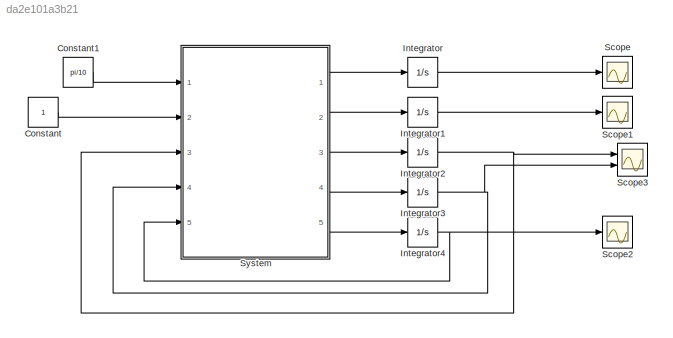
MODEL slx_da2e101a3b21
KIND model
CONFIG AbsTol = auto
CONFIG EnableMultiTasking = off
CONFIG FixedStep = auto
CONFIG MaxStep = auto
CONFIG MinStep = auto
CONFIG RelTol = 1e-3
CONFIG SampleTimeConstraint = Unconstrained
CONFIG SolverName = VariableStepAuto
CONFIG StartTime = 0.0
CONFIG StopTime = 10.0
BLOCK [Constant] Constant
BLOCK [Constant] Constant1
  Value = pi/10
BLOCK [Integrator] Integrator
  Ports = [1, 1]
BLOCK [Integrator] Integrator1
  Ports = [1, 1]
BLOCK [Integrator] Integrator2
  Ports = [1, 1]
BLOCK [Integrator] Integrator3
  InitialCondition = pi/8
  Ports = [1, 1]
BLOCK [Integrator] Integrator4
  InitialCondition = 0.0
  Ports = [1, 1]
BLOCK [Scope] Scope
  Floating = off
  NumInputPorts = 1
  Ports = [1]
  ScopeSpecificationString = Simulink.scopes.TimeScopeBlockCfg('CurrentConfiguration', extmgr.ConfigurationSet(extmgr.Configuration('Core','General UI',true),extmgr.Configuration('Core','Source UI',true),extmgr.Configuration('Sources','WiredSimulink',true),extmgr.Configuration('Visuals','Time Domain',true,'SerializedDisplays',{struct('MinYLimReal','-1.02557','MaxYLimReal','9.23009','YLabelReal','','MinYLimMag','0.00000','MaxY...<+1330ch>
BLOCK [Scope] Scope1
  Floating = off
  NumInputPorts = 1
  Ports = [1]
  ScopeSpecificationString = Simulink.scopes.TimeScopeBlockCfg('CurrentConfiguration', extmgr.ConfigurationSet(extmgr.Configuration('Core','General UI',true),extmgr.Configuration('Core','Source UI',true),extmgr.Configuration('Sources','WiredSimulink',true,'DataLoggingVariableName','ScopeData1'),extmgr.Configuration('Visuals','Time Domain',true,'SerializedDisplays',{struct('MinYLimReal','-0.59624','MaxYLimReal','5.36614','YLab...<+1370ch>
BLOCK [Scope] Scope2
  Floating = off
  NumInputPorts = 1
  Ports = [1]
  ScopeSpecificationString = Simulink.scopes.TimeScopeBlockCfg('CurrentConfiguration', extmgr.ConfigurationSet(extmgr.Configuration('Core','General UI',true),extmgr.Configuration('Core','Source UI',true),extmgr.Configuration('Sources','WiredSimulink',true,'DataLoggingVariableName','ScopeData2'),extmgr.Configuration('Visuals','Time Domain',true,'SerializedDisplays',{struct('MinYLimReal','-0.03927','MaxYLimReal','0.35343','YLab...<+1370ch>
BLOCK [Scope] Scope3
  Floating = off
  NumInputPorts = 2
  Ports = [2]
  ScopeSpecificationString = Simulink.scopes.TimeScopeBlockCfg('CurrentConfiguration', extmgr.ConfigurationSet(extmgr.Configuration('Core','General UI',true),extmgr.Configuration('Core','Source UI',true),extmgr.Configuration('Sources','WiredSimulink',true,'DataLoggingVariableName','ScopeData3'),extmgr.Configuration('Visuals','Time Domain',true,'SerializedDisplays',{struct('MinYLimReal','-0.59624','MaxYLimReal','5.36614','YLab...<+1359ch>
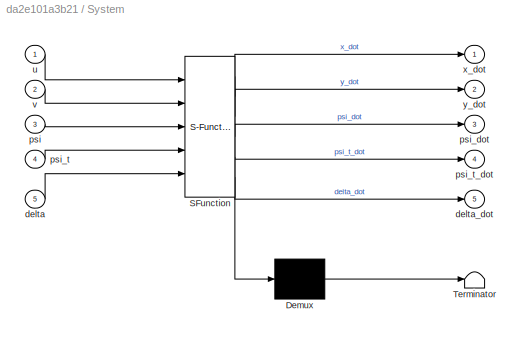
BLOCK [SubSystem] System
  ErrorFcn = Stateflow.Translate.translate
  PermitHierarchicalResolution = ExplicitOnly
  Ports = [5, 5]
  RequestExecContextInheritance = off
  SFBlockType = MATLAB Function
  TreatAsAtomicUnit = on
BLOCK [Demux] System/ Demux 
  Outputs = 1
  Ports = [1, 1]
BLOCK [S-Function] System/ SFunction 
  EnableBusSupport = on
  FunctionName = sf_sfun
  Parameters = lr1,lt1,m0,tau
  PortCounts = [5 6]
  Ports = [5, 6]
  SFcnIsStateOwnerBlock = off
  SFunctionDeploymentMode = off
  Tag = Stateflow S-Function 2
BLOCK [Terminator] System/ Terminator 
BLOCK [Inport] System/delta
  Port = 5
BLOCK [Outport] System/delta_dot
  Port = 5
BLOCK [Inport] System/psi
  Port = 3
BLOCK [Outport] System/psi_dot
  Port = 3
BLOCK [Inport] System/psi_t
  Port = 4
BLOCK [Outport] System/psi_t_dot
  Port = 4
BLOCK [Inport] System/u
BLOCK [Inport] System/v
  Port = 2
BLOCK [Outport] System/x_dot
BLOCK [Outport] System/y_dot
  Port = 2
LINE Constant1:1 -> System:1
LINE Constant:1 -> System:2
LINE Integrator1:1 -> Scope1:1
NET Integrator2:1 -> Scope3:1, System:3
NET Integrator3:1 -> Scope3:2, System:4
NET Integrator4:1 -> Scope2:1, System:5
LINE Integrator:1 -> Scope:1
LINE System:1 -> Integrator:1
LINE System:2 -> Integrator1:1
LINE System:3 -> Integrator2:1
LINE System:4 -> Integrator3:1
LINE System:5 -> Integrator4:1
note: NET lines group one-source signal fan-out (src -> all destinations, sorted); 1:1 wires keep LINE
CHART System states=1 transitions=1
  STATE_LABEL 'eML_blk_kernel()'
  STATE_LABEL 'SCRIPT:\nfunction [x_dot, y_dot, psi_dot, psi_t_dot, delta_dot] = fcn(u, v, psi, psi_t, delta, m0, tau, lt1, lr1)\n\nx_dot = v * cos(psi);\ny_dot = v * sin(psi);\npsi_dot = v * tan(delta) / lr1;\npsi_t_dot = (v / lt1) * sin(psi - psi_t) - (m0*v / lr1*lt1) * cos(psi - psi_t) * tan(delta);\ndelta_dot = - (1/tau) * (delta - u);\n\nend\n'
CHART  states=0 transitions=0
